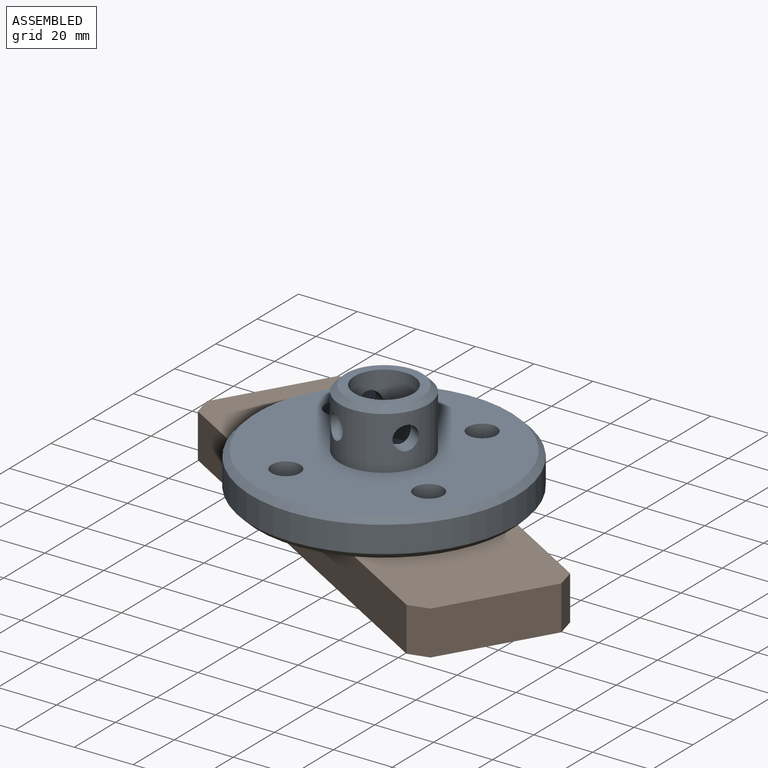
[diagram: assembled view]
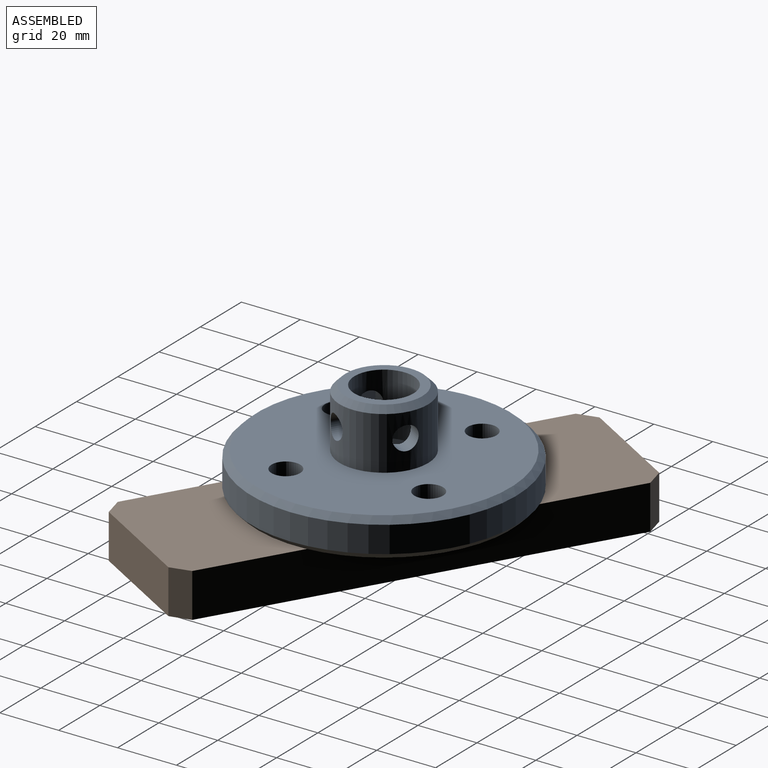
[diagram: assembled view, second angle]
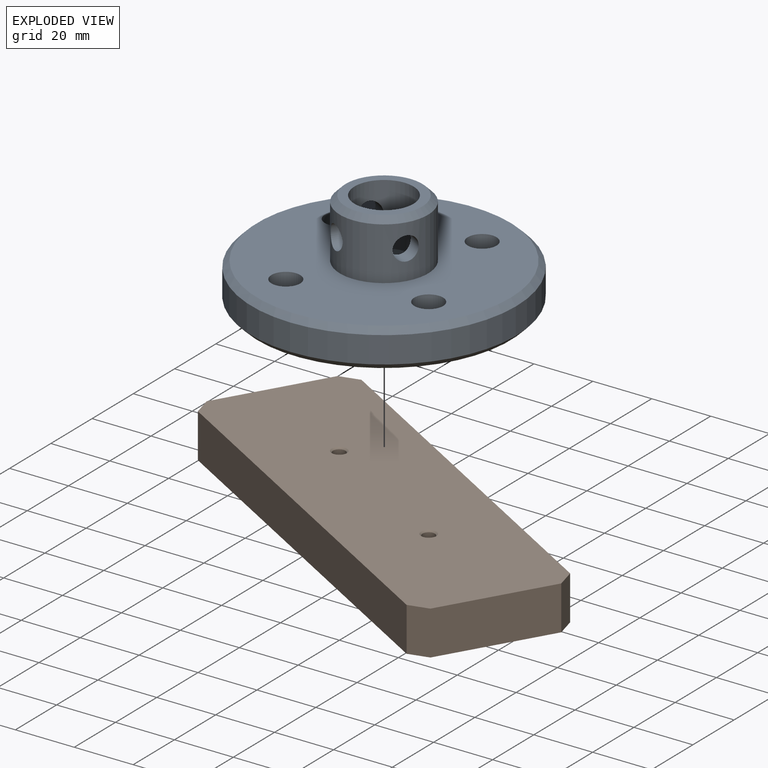
[diagram: exploded view]
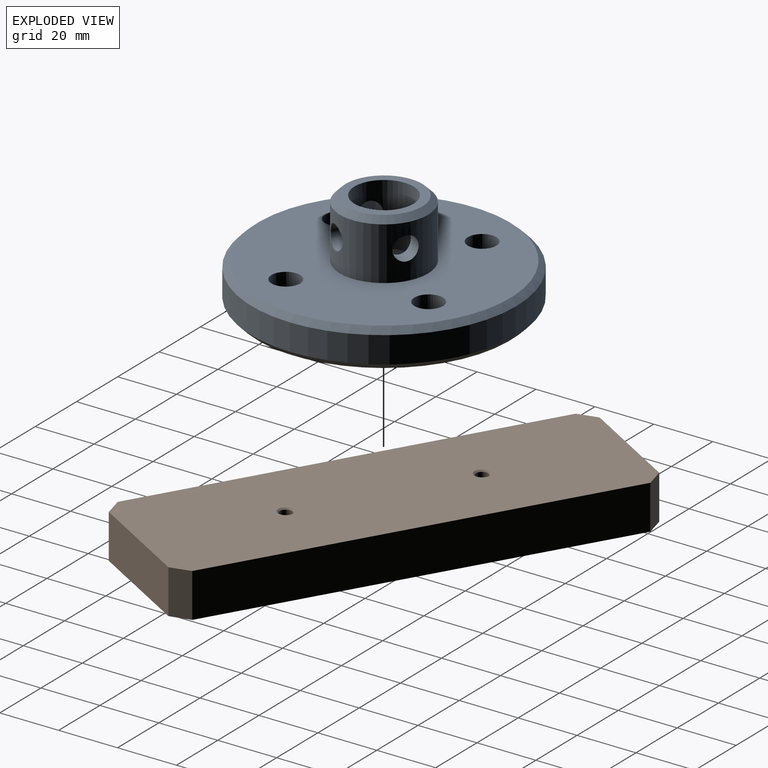
[diagram: exploded view, second angle]
ASSEMBLY  parts=2 mates=2
PART A: 26 faces, bbox 90x33x90 mm
  f0: cylinder r=4mm len=8mm, axis (0,0,1), area 129.2mm2, adj f3,f4
  f1: cylinder r=4mm len=8mm, axis (-1,0,0), area 129.2mm2, adj f3,f4
  f2: cylinder r=4mm len=8mm, axis (0,0,-1), area 129.2mm2, adj f3,f4
  f3: cylinder r=15mm len=30mm, axis (0,1,0), area 1493.3mm2, adj f0,f1,f2,f16,f22,f25
  f4: cylinder r=10mm len=21mm, axis (0,1,0), area 1113.9mm2, adj f0,f1,f2,f17,f18,f22
  f5: cylinder r=2.75mm len=8mm, axis (0,1,0), area 138.2mm2, adj f6,f15
  f6: plane 9.75x9.75mm, normal (0,1,0), area 50.9mm2, adj f5,f7
  f7: cylinder r=4.88mm len=9.75mm, axis (0,1,0), area 153.2mm2, adj f6,f16
  f8: cylinder r=2.75mm len=8mm, axis (0,1,0), area 138.2mm2, adj f9,f15
  f9: plane 9.75x9.75mm, normal (0,1,0), area 50.9mm2, adj f8,f10
  f10: cylinder r=4.88mm len=9.75mm, axis (0,1,0), area 153.2mm2, adj f9,f16
  f11: cylinder r=2.75mm len=8mm, axis (0,1,0), area 138.2mm2, adj f12,f15
  f12: plane 9.75x9.75mm, normal (0,1,0), area 50.9mm2, adj f11,f13
  f13: cylinder r=4.88mm len=9.75mm, axis (0,1,0), area 153.2mm2, adj f12,f16
  f14: cylinder r=45mm len=90mm, axis (0,1,0), area 2544.7mm2, adj f23,f24
  f15: plane 86x86mm, normal (0,-1,0), area 5713.8mm2, adj f5,f8,f11,f19,f23
  f16: plane 86x86mm, normal (0,1,0), area 4803.3mm2, adj f3,f7,f10,f13,f21,f24
  f17: plane 26x26mm, normal (0,1,0), area 216.8mm2, adj f4,f25
  f18: cone r=0mm half-angle=59deg, axis (0,1,0), area 366.5mm2, adj f4
  f19: cylinder r=2.75mm len=8mm, axis (0,1,0), area 138.2mm2, adj f15,f20
  f20: plane 9.75x9.75mm, normal (0,1,0), area 50.9mm2, adj f19,f21
  f21: cylinder r=4.88mm len=9.75mm, axis (0,1,0), area 153.2mm2, adj f16,f20
  f22: cylinder r=4mm len=8mm, axis (1,0,0), area 129.2mm2, adj f3,f4
  f23: cone r=43mm half-angle=45deg, axis (0,1,0), area 781.9mm2, adj f14,f15
  f24: cone r=45mm half-angle=45deg, axis (0,-1,0), area 781.9mm2, adj f14,f16
  f25: cone r=13mm half-angle=45deg, axis (0,-1,0), area 248.8mm2, adj f3,f17
PART B: 16 faces, bbox 150x50x15 mm
  f0: cone r=0mm half-angle=59deg, axis (0,0,1), area 16.2mm2, adj f1
  f1: cylinder r=2.1mm len=9.5mm, axis (0,0,1), area 125.3mm2, adj f0,f14
  f2: plane 140x15mm, normal (0,1,0), area 2100mm2, adj f6,f7,f10,f11
  f3: plane 40x15mm, normal (-1,0,0), area 600mm2, adj f6,f7,f8,f10
  f4: plane 140x15mm, normal (0,-1,0), area 2100mm2, adj f6,f7,f8,f9
  f5: plane 40x15mm, normal (1,0,0), area 600mm2, adj f6,f7,f9,f11
  f6: plane 150x50mm, normal (0,0,1), area 7407.5mm2, adj f2,f3,f4,f5,f8,f9,f10,f11
  f7: plane 150x50mm, normal (0,0,-1), area 7450mm2, adj f2,f3,f4,f5,f8,f9,f10,f11
  f8: plane 15x5mm, normal (-0.71,-0.71,0), area 106.1mm2, adj f3,f4,f6,f7
  f9: plane 15x5mm, normal (0.71,-0.71,0), area 106.1mm2, adj f4,f5,f6,f7
  f10: plane 15x5mm, normal (-0.71,0.71,0), area 106.1mm2, adj f2,f3,f6,f7
  f11: plane 15x5mm, normal (0.71,0.71,0), area 106.1mm2, adj f2,f5,f6,f7
  f12: cone r=0mm half-angle=59deg, axis (0,0,1), area 16.2mm2, adj f13
  f13: cylinder r=2.1mm len=9.5mm, axis (0,0,1), area 125.3mm2, adj f12,f15
  f14: cone r=2.1mm half-angle=45deg, axis (0,0,1), area 10.4mm2, adj f1,f6
  f15: cone r=2.1mm half-angle=45deg, axis (0,0,1), area 10.4mm2, adj f6,f13
PLACE A rot(axis=(0.78,0.44,0.44),104.3deg) t=(-91.66,-161.71,-12.12)mm
PLACE B rot(axis=(0,0,-1),30.5deg) t=(-91.66,-161.71,-36.12)mm
MATE cylindrical B.f0 <-> A.f5  axis (0,0,1) through (-117.51,-146.49,-28.62)mm
MATE planar A.f14 <-> B.f6  axis (0,0,-1) through (-91.66,-161.71,-28.62)mm
